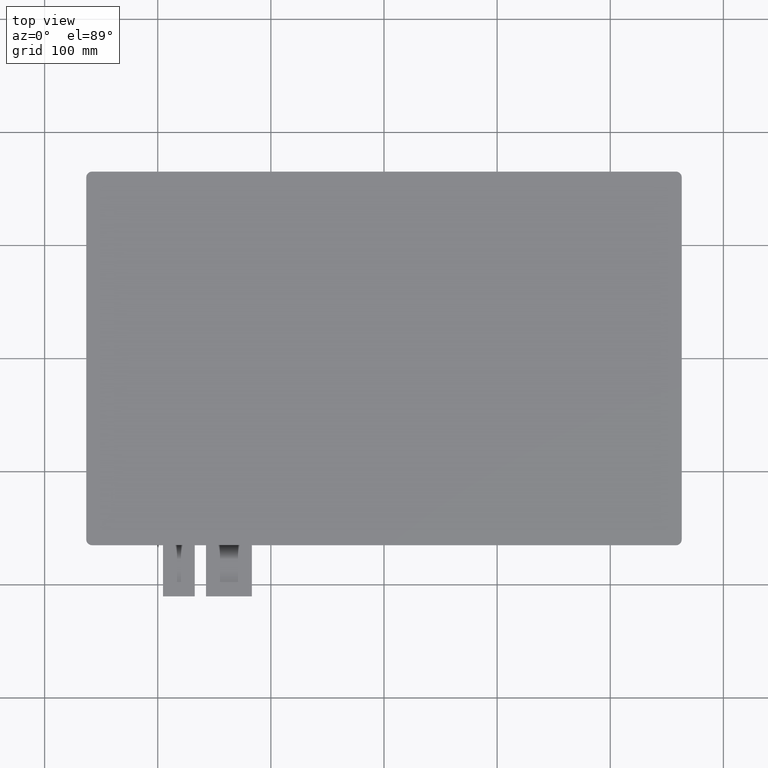
[diagram: clean part render]
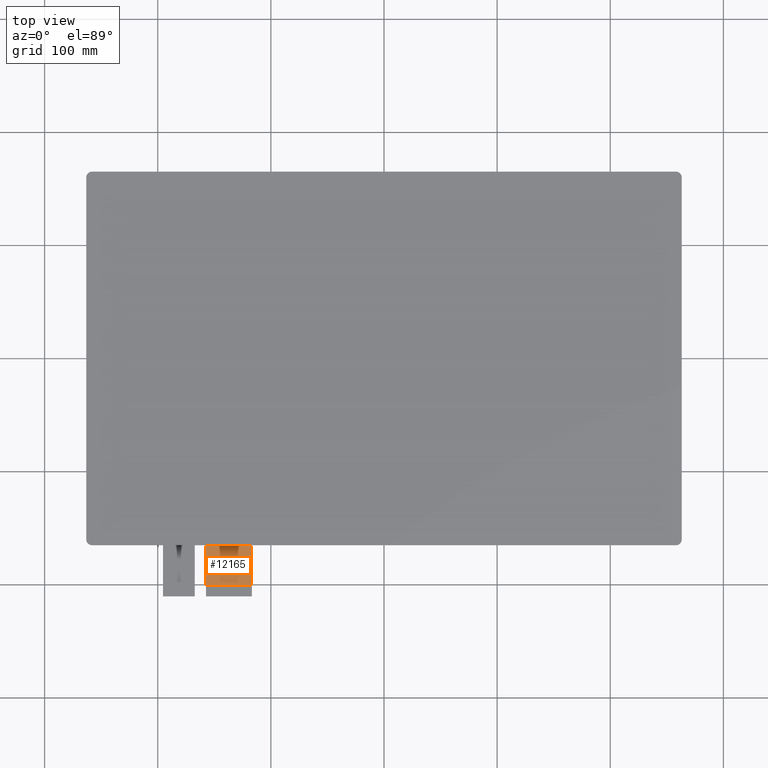
[diagram: same view with one face highlighted and labeled with its STEP entity id]
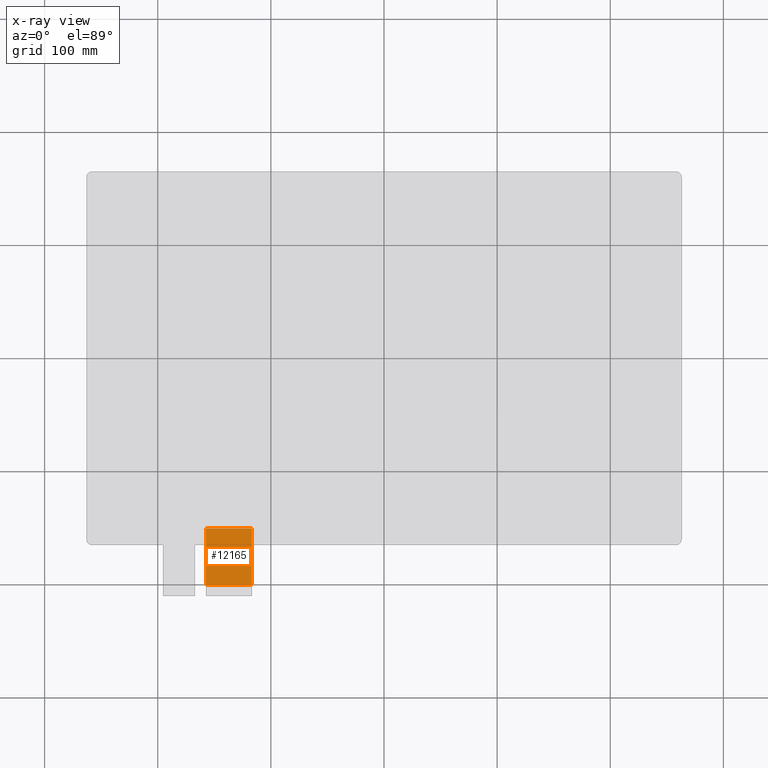
[diagram: x-ray of the same camera — body ghosted, the highlighted face saturated]
A machine part, top view. The second image highlights one B-rep face of the part: STEP entity #12165.
The next image is the same camera in x-ray: the body ghosted, the highlighted face saturated — about 0% of this face is hidden behind the body in this view.
In plain terms, the highlighted planar face has unit normal (0, 0, 1).
Its self-contained STEP definition (entity closure, byte-faithful):
#605=PLANE('',#12779);
#1185=FACE_OUTER_BOUND('',#1769,.T.);
#1769=EDGE_LOOP('',(#11467,#11468,#11469,#11470));
#3452=LINE('',#19058,#5168);
#3455=LINE('',#19064,#5171);
#3465=LINE('',#19083,#5181);
#3466=LINE('',#19085,#5182);
#5168=VECTOR('',#15590,10.);
#5171=VECTOR('',#15595,10.);
#5181=VECTOR('',#15613,10.);
#5182=VECTOR('',#15616,10.);
#6357=VERTEX_POINT('',#19055);
#6358=VERTEX_POINT('',#19057);
#6360=VERTEX_POINT('',#19063);
#6365=VERTEX_POINT('',#19081);
#8064=EDGE_CURVE('',#6358,#6357,#3452,.T.);
#8067=EDGE_CURVE('',#6357,#6360,#3455,.T.);
#8077=EDGE_CURVE('',#6360,#6365,#3465,.T.);
#8078=EDGE_CURVE('',#6358,#6365,#3466,.T.);
#11467=ORIENTED_EDGE('',*,*,#8067,.T.);
#11468=ORIENTED_EDGE('',*,*,#8077,.T.);
#11469=ORIENTED_EDGE('',*,*,#8078,.F.);
#11470=ORIENTED_EDGE('',*,*,#8064,.T.);
#12165=ADVANCED_FACE('',(#1185),#605,.T.);
#12779=AXIS2_PLACEMENT_3D('',#19084,#15614,#15615);
#15590=DIRECTION('',(5.9211894646675E-16,-1.,0.));
#15595=DIRECTION('',(1.,0.,0.));
#15613=DIRECTION('',(1.48029736616688E-15,1.,0.));
#15614=DIRECTION('center_axis',(0.,0.,1.));
#15615=DIRECTION('ref_axis',(1.,0.,0.));
#15616=DIRECTION('',(1.,1.0748427830175E-16,0.));
#19055=CARTESIAN_POINT('',(-157.35,-200.35,-1.25));
#19057=CARTESIAN_POINT('',(-157.35,-150.35,-1.25));
#19058=CARTESIAN_POINT('',(-157.35,-150.35,-1.25));
#19063=CARTESIAN_POINT('',(-116.85,-200.35,-1.25));
#19064=CARTESIAN_POINT('',(-126.975,-200.35,-1.25));
#19081=CARTESIAN_POINT('',(-116.85,-150.35,-1.25));
#19083=CARTESIAN_POINT('',(-116.85,-210.35,-1.25));
#19084=CARTESIAN_POINT('Origin',(-137.1,-180.35,-1.25));
#19085=CARTESIAN_POINT('',(54.2750000000001,-150.35,-1.25));